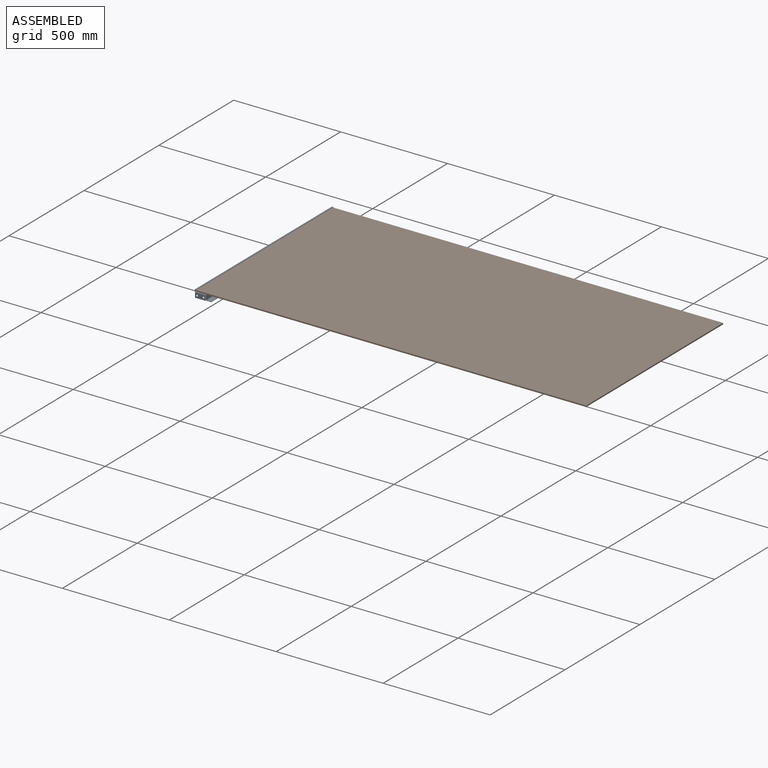
[diagram: assembled view]
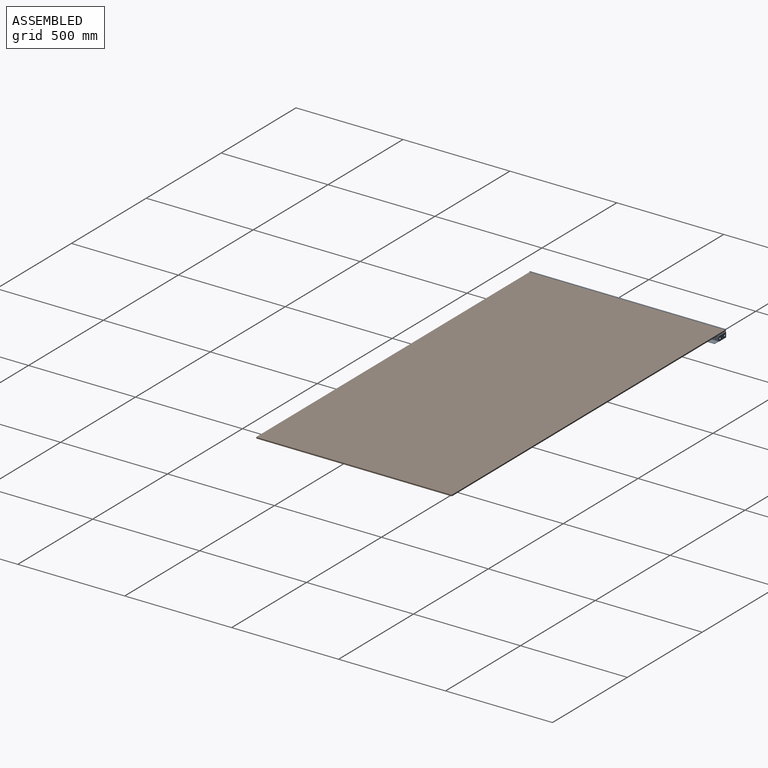
[diagram: assembled view, second angle]
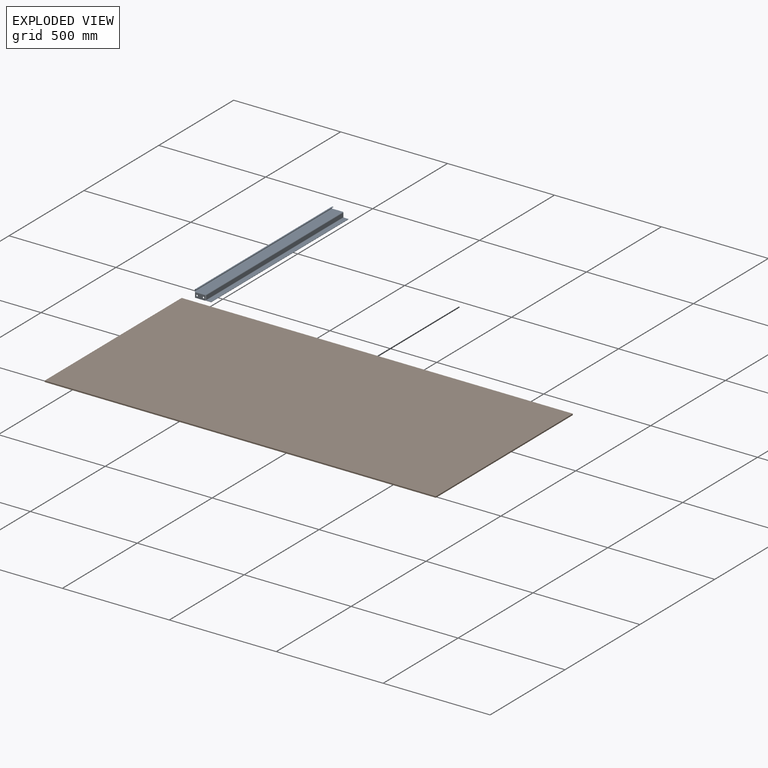
[diagram: exploded view]
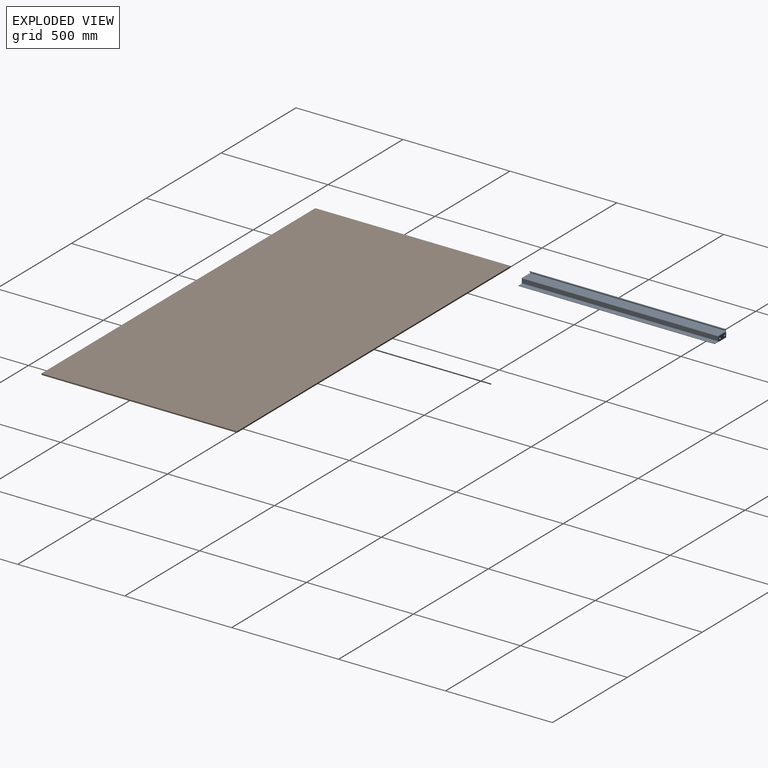
[diagram: exploded view, second angle]
ASSEMBLY  parts=2 mates=3
PART A: 58 faces, bbox 34.9x77.8x920.8 mm
  f0: plane 917.22x19.05mm, normal (0,1,0), area 17473mm2, adj f1,f3,f36,f52
  f1: plane 19.05x1.59mm, normal (0,0,-1), area 30.2mm2, adj f0,f2,f35,f49
  f2: plane 917.22x19.05mm, normal (0,-1,0), area 17473mm2, adj f1,f3,f37,f51
  f3: plane 19.05x1.59mm, normal (0,0,1), area 30.2mm2, adj f0,f2,f34,f50
  f4: plane 914.4x47.63mm, normal (1,0,0), area 43548.3mm2, adj f18,f32,f36,f40
  f5: plane 914.4x47.63mm, normal (-1,0,0), area 43548.3mm2, adj f19,f33,f37,f41
  f6: plane 3.18x3.18mm, normal (0,0,1), area 5.9mm2, adj f7,f18,f19,f31
  f7: plane 4.76x1.59mm, normal (0,0,1), area 7.6mm2, adj f6,f9,f17,f20
  f8: plane 3.18x3.18mm, normal (0,0,-1), area 5.9mm2, adj f12,f18,f19,f39
  f9: plane 3.18x3.18mm, normal (0,0,1), area 5.9mm2, adj f7,f10,f16,f21
  f10: plane 4.76x1.59mm, normal (0,0,1), area 7.6mm2, adj f9,f13,f14,f15
  f11: plane 3.18x3.18mm, normal (0,0,-1), area 5.9mm2, adj f12,f16,f21,f22
  f12: plane 4.76x1.59mm, normal (0,0,-1), area 7.6mm2, adj f8,f11,f17,f20
  f13: plane 914.4x4.76mm, normal (1,0,0), area 4354.8mm2, adj f10,f14,f21,f22
  f14: plane 914.4x1.59mm, normal (0,1,0), area 1451.6mm2, adj f10,f13,f15,f22
  f15: plane 914.4x4.76mm, normal (-1,0,0), area 4354.8mm2, adj f10,f14,f16,f22
  f16: cylinder r=1.59mm len=914.4mm, axis (0,0,-1), area 2280.2mm2, adj f9,f11,f15,f17
  f17: plane 914.4x4.76mm, normal (0,1,0), area 4354.8mm2, adj f7,f12,f16,f18
  f18: cylinder r=1.59mm len=914.4mm, axis (0,0,-1), area 2280.2mm2, adj f4,f6,f8,f17
  f19: cylinder r=3.17mm len=914.4mm, axis (0,0,-1), area 4560.4mm2, adj f5,f6,f8,f20
  f20: plane 914.4x4.76mm, normal (0,-1,0), area 4354.8mm2, adj f7,f12,f19,f21
  f21: cylinder r=3.17mm len=914.4mm, axis (0,0,-1), area 4560.4mm2, adj f9,f11,f13,f20
  f22: plane 4.76x1.59mm, normal (0,0,-1), area 7.6mm2, adj f11,f13,f14,f15
  f23: plane 49.03x1.59mm, normal (-1,0,0), area 77.8mm2, adj f26,f27,f28,f29
  f24: cylinder r=3.56mm len=7.11mm, axis (0,0,1), area 35.5mm2, adj f26,f28
  f25: cylinder r=3.56mm len=7.11mm, axis (0,0,1), area 35.5mm2, adj f26,f28
  f26: plane 49.03x22.23mm, normal (0,0,1), area 1010.3mm2, adj f23,f24,f25,f27,f29,f32
  f27: plane 22.23x1.59mm, normal (0,1,0), area 35.3mm2, adj f23,f26,f28,f30
  f28: plane 49.03x22.23mm, normal (0,0,-1), area 1010.3mm2, adj f23,f24,f25,f27,f29,f33
  f29: plane 22.23x1.59mm, normal (0,-1,0), area 35.3mm2, adj f23,f26,f28,f31
  f30: bspline ~3.19x3.19mm, area 6.4mm2, adj f27,f32,f33,f34
  f31: plane 3.18x3.18mm, normal (0,-1,0), area 5.9mm2, adj f6,f29,f32,f33
  f32: cylinder r=3.17mm len=49.03mm, axis (0,1,0), area 241mm2, adj f4,f26,f30,f31
  f33: cylinder r=1.59mm len=49.03mm, axis (0,1,0), area 120.5mm2, adj f5,f28,f30,f31
  f34: bspline ~3.18x3.18mm, area 6.5mm2, adj f3,f30,f36,f37
  f35: bspline ~3.19x3.19mm, area 6.5mm2, adj f1,f36,f37,f38
  f36: cylinder r=3.17mm len=917.22mm, axis (0,0,-1), area 4567.4mm2, adj f0,f4,f34,f35
  f37: cylinder r=1.59mm len=917.22mm, axis (0,0,-1), area 2283.7mm2, adj f2,f5,f34,f35
  f38: bspline ~3.18x3.18mm, area 6.4mm2, adj f35,f40,f41,f48
  f39: plane 3.18x3.18mm, normal (0,-1,0), area 5.9mm2, adj f8,f40,f41,f46
  f40: cylinder r=3.17mm len=49.03mm, axis (0,1,0), area 241mm2, adj f4,f38,f39,f45
  f41: cylinder r=1.59mm len=49.03mm, axis (0,1,0), area 120.5mm2, adj f5,f38,f39,f47
  f42: plane 49.03x1.59mm, normal (-1,0,0), area 77.8mm2, adj f45,f46,f47,f48
  f43: cylinder r=3.56mm len=7.11mm, axis (0,0,1), area 35.5mm2, adj f45,f47
  f44: cylinder r=3.56mm len=7.11mm, axis (0,0,1), area 35.5mm2, adj f45,f47
  f45: plane 49.03x22.23mm, normal (0,0,-1), area 1010.3mm2, adj f40,f42,f43,f44,f46,f48
  f46: plane 22.23x1.59mm, normal (0,-1,0), area 35.3mm2, adj f39,f42,f45,f47
  f47: plane 49.03x22.23mm, normal (0,0,1), area 1010.3mm2, adj f41,f42,f43,f44,f46,f48
  f48: plane 22.23x1.59mm, normal (0,1,0), area 35.3mm2, adj f38,f42,f45,f47
  f49: plane 3.18x3.18mm, normal (0,0,-1), area 5.9mm2, adj f1,f51,f52,f54
  f50: plane 3.18x3.18mm, normal (0,0,1), area 5.9mm2, adj f3,f51,f52,f53
  f51: cylinder r=3.17mm len=917.22mm, axis (0,0,1), area 4574.4mm2, adj f2,f49,f50,f55
  f52: cylinder r=1.59mm len=917.22mm, axis (0,0,1), area 2287.2mm2, adj f0,f49,f50,f56
  f53: plane 22.23x1.59mm, normal (0,0,1), area 35.3mm2, adj f50,f55,f56,f57
  f54: plane 22.23x1.59mm, normal (0,0,-1), area 35.3mm2, adj f49,f55,f56,f57
  f55: plane 917.22x22.23mm, normal (-1,0,0), area 20385.1mm2, adj f51,f53,f54,f57
  f56: plane 917.22x22.23mm, normal (1,0,0), area 20385.1mm2, adj f52,f53,f54,f57
  f57: plane 917.22x1.59mm, normal (0,1,0), area 1456.1mm2, adj f53,f54,f55,f56
PART B: 6 faces, bbox 914.4x1828.8x6.4 mm
  f0: plane 1828.8x6.35mm, normal (-1,0,0), area 11612.9mm2, adj f1,f3,f4,f5
  f1: plane 914.4x6.35mm, normal (0,-1,0), area 5806.4mm2, adj f0,f2,f4,f5
  f2: plane 1828.8x6.35mm, normal (1,0,0), area 11612.9mm2, adj f1,f3,f4,f5
  f3: plane 914.4x6.35mm, normal (0,1,0), area 5806.4mm2, adj f0,f2,f4,f5
  f4: plane 1828.8x914.4mm, normal (0,0,1), area 1672254.7mm2, adj f0,f1,f2,f3
  f5: plane 1828.8x914.4mm, normal (0,0,-1), area 1672254.7mm2, adj f0,f1,f2,f3
PLACE A rot(axis=(-0.58,-0.58,-0.58),120deg) t=(-3705.07,-1034.19,376.58)mm
PLACE B rot(axis=(0,0,-1),90deg) t=(-3755.87,-119.79,376.58)mm
MATE planar B.f0 <-> A.f6  axis (0,1,0) through (-2841.47,-119.79,379.75)mm
MATE planar B.f1 <-> A.f17  axis (-1,0,0) through (-3755.87,-576.99,379.75)mm
MATE planar A.f4 <-> B.f5  axis (0,0,1) through (-3754.28,-576.99,376.58)mm
